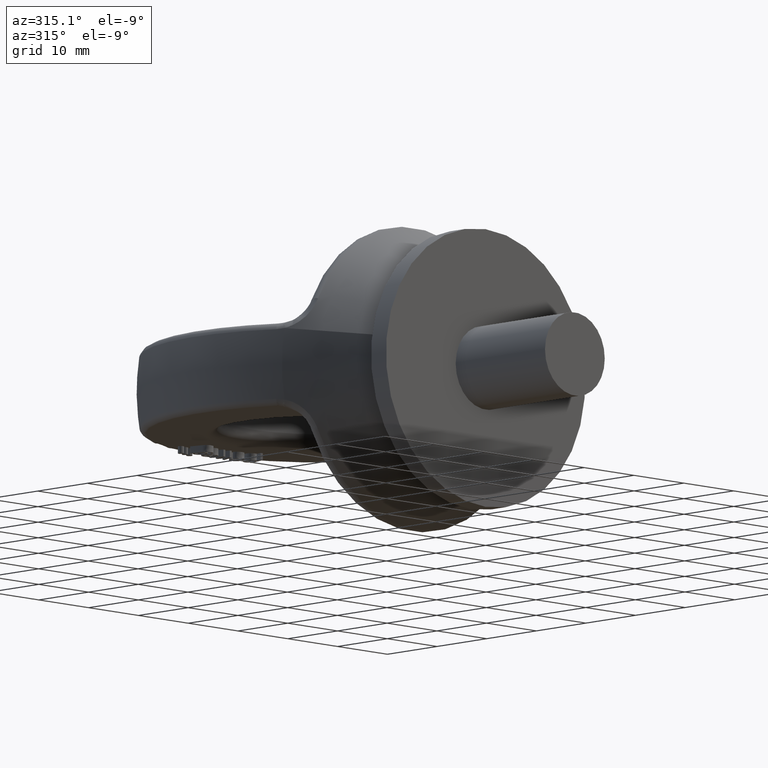
[diagram: clean part render]
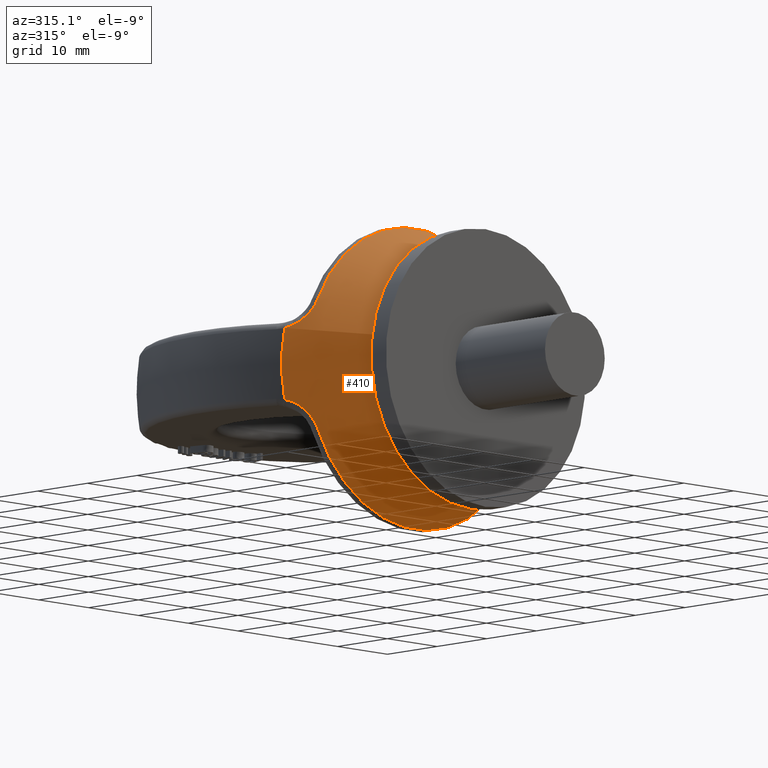
[diagram: same view with one face highlighted and labeled with its STEP entity id]
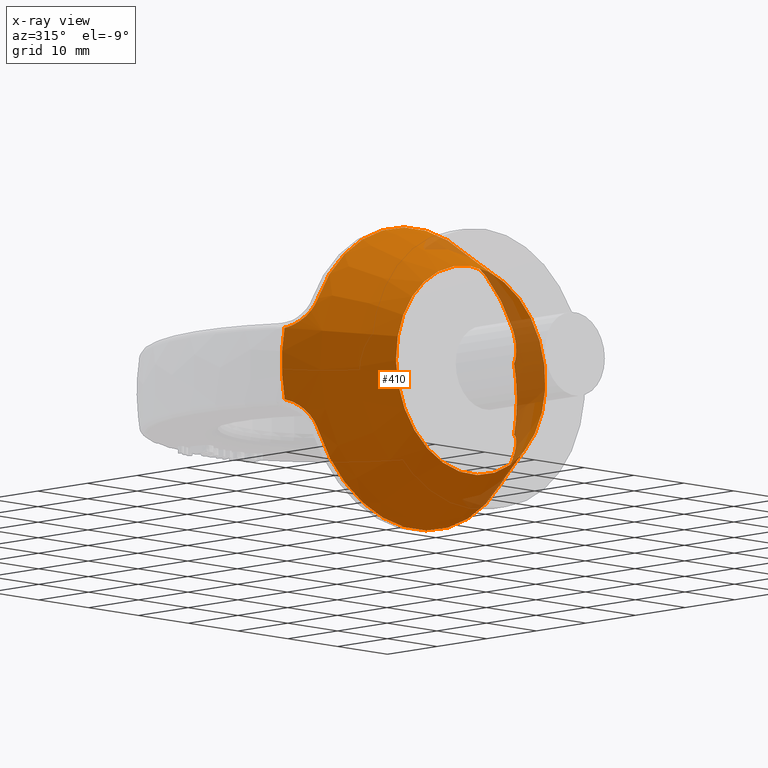
[diagram: x-ray of the same camera — body ghosted, the highlighted face saturated]
A machine part, auxiliary view. The second image highlights one B-rep face of the part: STEP entity #410.
The next image is the same camera in x-ray: the body ghosted, the highlighted face saturated — about 12% of this face is hidden behind the body in this view.
In plain terms, the highlighted conical surface has half-angle 30.876 deg.
Its self-contained STEP definition (entity closure, byte-faithful):
#245=CONICAL_SURFACE('',#3358,13.2062141843784,30.8764104700905);
#410=ADVANCED_FACE('',(#752,#753),#245,.T.);
#694=CIRCLE('',#3353,15.0000000000001);
#695=CIRCLE('',#3354,23.6025973043248);
#696=CIRCLE('',#3355,21.6873378493402);
#697=CIRCLE('',#3356,23.6025973043248);
#698=CIRCLE('',#3357,21.6873378493402);
#752=FACE_BOUND('',#817,.T.);
#753=FACE_BOUND('',#818,.T.);
#817=EDGE_LOOP('',(#1530));
#818=EDGE_LOOP('',(#1531,#1532,#1533,#1534,#1535,#1536,#1537,#1538));
#1530=ORIENTED_EDGE('',*,*,#2714,.F.);
#1531=ORIENTED_EDGE('',*,*,#2715,.T.);
#1532=ORIENTED_EDGE('',*,*,#2716,.T.);
#1533=ORIENTED_EDGE('',*,*,#2717,.T.);
#1534=ORIENTED_EDGE('',*,*,#2718,.T.);
#1535=ORIENTED_EDGE('',*,*,#2719,.T.);
#1536=ORIENTED_EDGE('',*,*,#2720,.T.);
#1537=ORIENTED_EDGE('',*,*,#2721,.T.);
#1538=ORIENTED_EDGE('',*,*,#2722,.T.);
#2418=VERTEX_POINT('',#4438);
#2419=VERTEX_POINT('',#4443);
#2420=VERTEX_POINT('',#4444);
#2421=VERTEX_POINT('',#4446);
#2422=VERTEX_POINT('',#4451);
#2423=VERTEX_POINT('',#4453);
#2424=VERTEX_POINT('',#4458);
#2425=VERTEX_POINT('',#4460);
#2426=VERTEX_POINT('',#4465);
#2714=EDGE_CURVE('',#2418,#2418,#694,.T.);
#2715=EDGE_CURVE('',#2419,#2420,#3122,.T.);
#2716=EDGE_CURVE('',#2420,#2421,#695,.T.);
#2717=EDGE_CURVE('',#2421,#2422,#3123,.T.);
#2718=EDGE_CURVE('',#2422,#2423,#696,.T.);
#2719=EDGE_CURVE('',#2423,#2424,#3124,.T.);
#2720=EDGE_CURVE('',#2424,#2425,#697,.T.);
#2721=EDGE_CURVE('',#2425,#2426,#3125,.T.);
#2722=EDGE_CURVE('',#2426,#2419,#698,.T.);
#3122=B_SPLINE_CURVE_WITH_KNOTS('',3,(#4439,#4440,#4441,#4442),
 .UNSPECIFIED.,.F.,.F.,(4,4),(0.,1.),.UNSPECIFIED.);
#3123=B_SPLINE_CURVE_WITH_KNOTS('',3,(#4447,#4448,#4449,#4450),
 .UNSPECIFIED.,.F.,.F.,(4,4),(0.,1.),.UNSPECIFIED.);
#3124=B_SPLINE_CURVE_WITH_KNOTS('',3,(#4454,#4455,#4456,#4457),
 .UNSPECIFIED.,.F.,.F.,(4,4),(0.,1.),.UNSPECIFIED.);
#3125=B_SPLINE_CURVE_WITH_KNOTS('',3,(#4461,#4462,#4463,#4464),
 .UNSPECIFIED.,.F.,.F.,(4,4),(0.,1.),.UNSPECIFIED.);
#3353=AXIS2_PLACEMENT_3D('',#4437,#3578,#3579);
#3354=AXIS2_PLACEMENT_3D('',#4445,#3580,#3581);
#3355=AXIS2_PLACEMENT_3D('',#4452,#3582,#3583);
#3356=AXIS2_PLACEMENT_3D('',#4459,#3584,#3585);
#3357=AXIS2_PLACEMENT_3D('',#4466,#3586,#3587);
#3358=AXIS2_PLACEMENT_3D('',#4467,#3588,#3589);
#3578=DIRECTION('',(0.,-1.,0.));
#3579=DIRECTION('',(0.,0.,1.));
#3580=DIRECTION('',(-2.1593813703848E-15,-1.,0.));
#3581=DIRECTION('',(1.,-2.20491429855343E-15,0.));
#3582=DIRECTION('',(4.38613491528481E-16,-1.,0.));
#3583=DIRECTION('',(1.,3.99939238284515E-16,0.));
#3584=DIRECTION('',(-2.1593813703848E-15,-1.,0.));
#3585=DIRECTION('',(1.,-2.20491429855343E-15,0.));
#3586=DIRECTION('',(-4.38613491528481E-16,-1.,-1.02763225525862E-30));
#3587=DIRECTION('',(-1.,3.99939238284515E-16,-2.34291072916505E-15));
#3588=DIRECTION('',(2.1593813703848E-15,1.,0.));
#3589=DIRECTION('',(-1.,2.13457327670053E-15,0.));
#4437=CARTESIAN_POINT('',(-1.27403500852703E-13,3.,2.58454824747247E-14));
#4438=CARTESIAN_POINT('',(-1.27403500852703E-13,3.,15.0000000000001));
#4439=CARTESIAN_POINT('',(19.520817615998,14.1841744835443,-9.44871962724929));
#4440=CARTESIAN_POINT('',(20.5128956588533,14.1841744835443,-7.39911128882818));
#4441=CARTESIAN_POINT('',(21.7953895553173,15.5398626792843,-5.62746283426921));
#4442=CARTESIAN_POINT('',(23.0351195089713,17.387331914557,-5.14449887914579));
#4443=CARTESIAN_POINT('',(19.5208176159981,14.1841744835444,-9.44871962724931));
#4444=CARTESIAN_POINT('',(23.0351195089713,17.387331914557,-5.1444988791458));
#4445=CARTESIAN_POINT('',(-8.98576202357118E-14,17.3873319145569,0.));
#4446=CARTESIAN_POINT('',(23.0351195089711,17.3873319145569,5.14449887914588));
#4447=CARTESIAN_POINT('',(23.0351195089711,17.3873319145569,5.14449887914588));
#4448=CARTESIAN_POINT('',(21.7984630087253,15.5444427982053,5.62626550318159));
#4449=CARTESIAN_POINT('',(20.5109381502948,14.1841744835443,7.40315545238231));
#4450=CARTESIAN_POINT('',(19.5208176159979,14.1841744835443,9.44871962724934));
#4451=CARTESIAN_POINT('',(19.5208176159979,14.1841744835443,9.44871962724933));
#4452=CARTESIAN_POINT('',(-9.67744587186501E-14,14.1841744835443,0.));
#4453=CARTESIAN_POINT('',(-19.520817615998,14.1841744835444,9.44871962724936));
#4454=CARTESIAN_POINT('',(-19.520817615998,14.1841744835443,9.44871962724934));
#4455=CARTESIAN_POINT('',(-20.5128956588533,14.1841744835443,7.39911128882823));
#4456=CARTESIAN_POINT('',(-21.7953895553173,15.5398626792843,5.62746283426926));
#4457=CARTESIAN_POINT('',(-23.0351195089713,17.387331914557,5.14449887914585));
#4458=CARTESIAN_POINT('',(-23.0351195089713,17.387331914557,5.14449887914585));
#4459=CARTESIAN_POINT('',(-8.98576202357118E-14,17.3873319145569,0.));
#4460=CARTESIAN_POINT('',(-23.0351195089711,17.3873319145569,-5.14449887914593));
#4461=CARTESIAN_POINT('',(-23.0351195089711,17.3873319145569,-5.14449887914593));
#4462=CARTESIAN_POINT('',(-21.7984630087253,15.5444427982053,-5.62626550318164));
#4463=CARTESIAN_POINT('',(-20.5109381502948,14.1841744835443,-7.40315545238236));
#4464=CARTESIAN_POINT('',(-19.5208176159979,14.1841744835443,-9.44871962724939));
#4465=CARTESIAN_POINT('',(-19.5208176159978,14.1841744835443,-9.44871962724937));
#4466=CARTESIAN_POINT('',(9.67744587186501E-14,14.1841744835443,2.26733917641065E-28));
#4467=CARTESIAN_POINT('',(-1.27403500852703E-13,2.77555756156289E-14,0.));